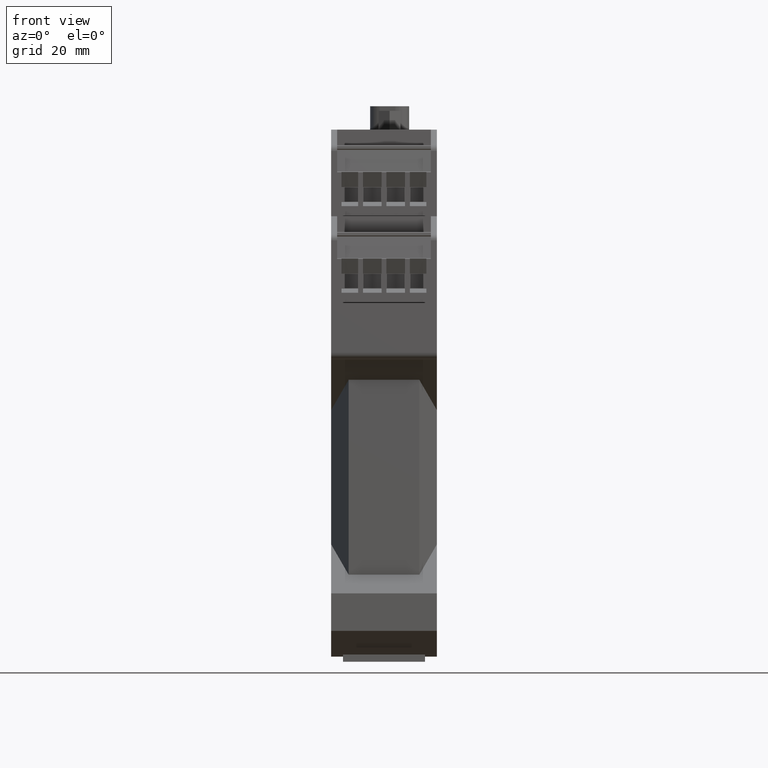
[diagram: clean part render]
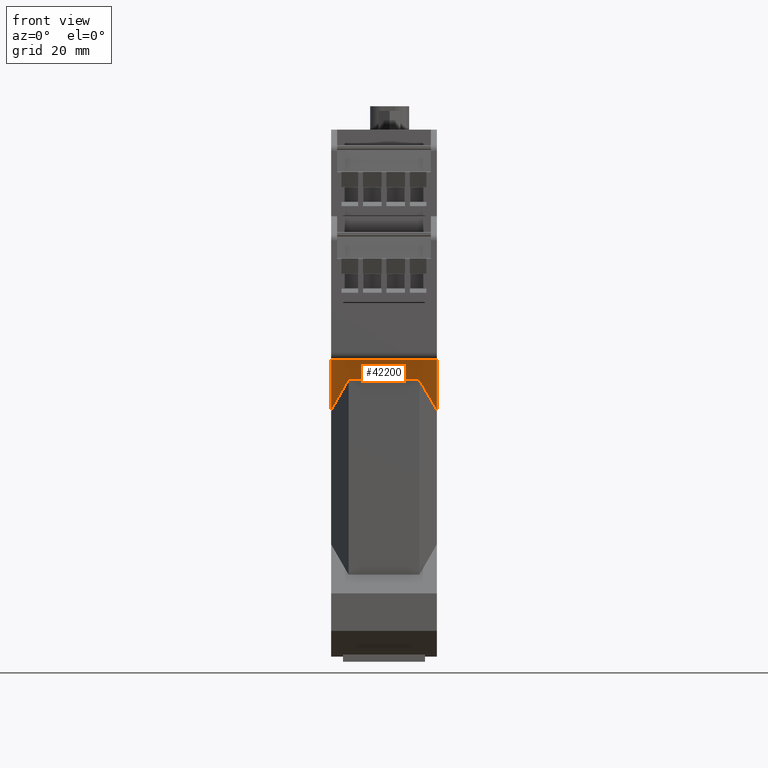
[diagram: same view with one face highlighted and labeled with its STEP entity id]
A machine part, front view. The second image highlights one B-rep face of the part: STEP entity #42200.
In plain terms, the highlighted planar face has unit normal (-0, 0.7071, 0.7071).
Its self-contained STEP definition (entity closure, byte-faithful):
#710=CARTESIAN_POINT('',(-46.85,57.9000000000014,-1.06581410364015E-14))
;
#720=VERTEX_POINT('',#710);
#750=CARTESIAN_POINT('',(-1.39020883780511E-11,11.0500000000157,
-3.5527136788005E-15));
#760=DIRECTION('',(0.707106781186551,-0.707106781186544,
8.65927457071939E-17));
#770=VECTOR('',#760,1.);
#780=LINE('',#750,#770);
#790=CARTESIAN_POINT('',(-36.0499999999998,47.1000000000012,
-7.105427357601E-15));
#800=VERTEX_POINT('',#790);
#810=EDGE_CURVE('',#720,#800,#780,.T.);
#41550=CARTESIAN_POINT('',(-42.5499999999969,53.5999999999983,
3.75277674973082));
#41560=VERTEX_POINT('',#41550);
#41590=CARTESIAN_POINT('',(-42.5499999999969,53.5999999999984,26.4));
#41600=DIRECTION('',(0.,8.71576399210515E-33,-1.));
#41610=VECTOR('',#41600,1.);
#41620=LINE('',#41590,#41610);
#41630=CARTESIAN_POINT('',(-42.5499999999969,53.5999999999983,
18.8472232502692));
#41640=VERTEX_POINT('',#41630);
#41650=EDGE_CURVE('',#41640,#41560,#41620,.T.);
#41830=CARTESIAN_POINT('',(-36.0499999999998,47.1000000000012,22.6));
#41840=DIRECTION('',(0.707106781186544,0.707106781186551,0.));
#41850=DIRECTION('',(0.707106781186551,-0.707106781186544,0.));
#41860=AXIS2_PLACEMENT_3D('',#41830,#41840,#41850);
#41870=PLANE('',#41860);
#41880=ORIENTED_EDGE('',*,*,#41650,.F.);
#41890=CARTESIAN_POINT('',(-6.50466356125206E-13,11.0500000000024,
-20.8134772042854));
#41900=DIRECTION('',(-0.65465367070798,0.654653670707974,
0.377964473009226));
#41910=VECTOR('',#41900,1.);
#41920=LINE('',#41890,#41910);
#41930=EDGE_CURVE('',#800,#41560,#41920,.T.);
#41940=ORIENTED_EDGE('',*,*,#41930,.T.);
#41950=ORIENTED_EDGE('',*,*,#810,.T.);
#41960=CARTESIAN_POINT('',(-46.85,57.9000000000014,26.4));
#41970=DIRECTION('',(0.,0.,-1.));
#41980=VECTOR('',#41970,1.);
#41990=LINE('',#41960,#41980);
#42000=CARTESIAN_POINT('',(-46.85,57.9000000000014,22.6));
#42010=VERTEX_POINT('',#42000);
#42020=EDGE_CURVE('',#42010,#720,#41990,.T.);
#42030=ORIENTED_EDGE('',*,*,#42020,.T.);
#42040=CARTESIAN_POINT('',(-1.39048559884107E-11,11.0500000000157,22.6))
;
#42050=DIRECTION('',(-0.707106781186551,0.707106781186544,
-3.10815944759361E-17));
#42060=VECTOR('',#42050,1.);
#42070=LINE('',#42040,#42060);
#42080=CARTESIAN_POINT('',(-36.0499999999998,47.1000000000012,22.6));
#42090=VERTEX_POINT('',#42080);
#42100=EDGE_CURVE('',#42090,#42010,#42070,.T.);
#42110=ORIENTED_EDGE('',*,*,#42100,.T.);
#42120=CARTESIAN_POINT('',(9.37735577990345E-11,11.049999999908,
43.41347720434));
#42130=DIRECTION('',(-0.65465367070798,0.654653670707975,
-0.377964473009226));
#42140=VECTOR('',#42130,1.);
#42150=LINE('',#42120,#42140);
#42160=EDGE_CURVE('',#42090,#41640,#42150,.T.);
#42170=ORIENTED_EDGE('',*,*,#42160,.F.);
#42180=EDGE_LOOP('',(#42170,#42110,#42030,#41950,#41940,#41880));
#42190=FACE_OUTER_BOUND('',#42180,.T.);
#42200=ADVANCED_FACE('',(#42190),#41870,.F.);